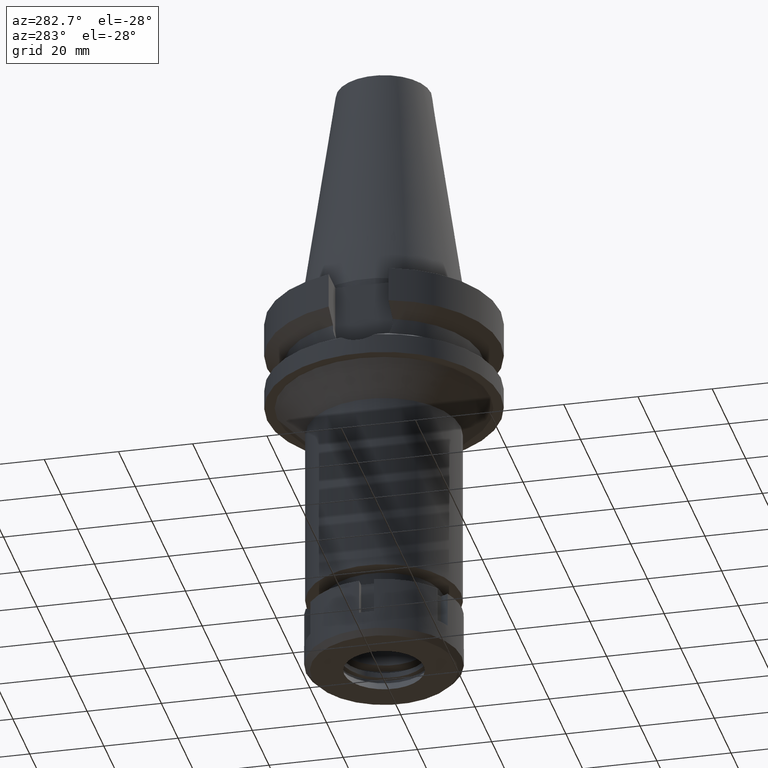
[diagram: clean part render]
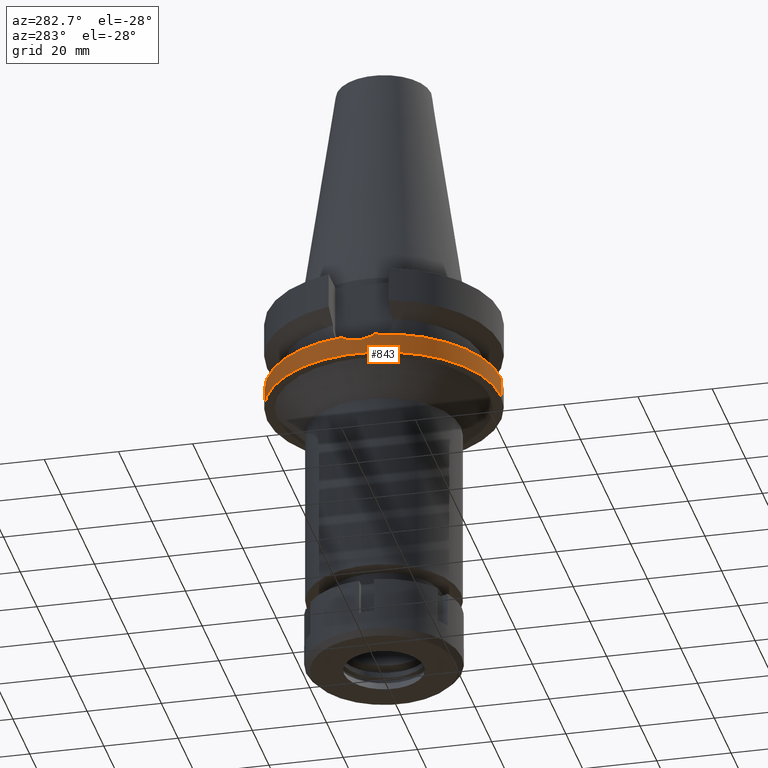
[diagram: same view with one face highlighted and labeled with its STEP entity id]
A machine part, auxiliary view. The second image highlights one B-rep face of the part: STEP entity #843.
In plain terms, the highlighted cylindrical surface (partial cylindrical patch) has radius 31.5 mm, axis along (0, 0, -1).
Its self-contained STEP definition (entity closure, byte-faithful):
#226 = CIRCLE ( 'NONE', #1412, 31.50000000000001421 ) ;
#238 = CARTESIAN_POINT ( 'NONE',  ( -31.46146862952803502, -1.567358629210796606, -22.84847756273253339 ) ) ;
#249 = VERTEX_POINT ( 'NONE', #3398 ) ;
#263 = CARTESIAN_POINT ( 'NONE',  ( -31.47056816806593460, -1.371798205039238550, -22.88470967409992340 ) ) ;
#384 = CIRCLE ( 'NONE', #1141, 31.50000000000000000 ) ;
#390 = CARTESIAN_POINT ( 'NONE',  ( 0.0000000000000000000, 2.125007125879999817E-14, -27.00000000000000000 ) ) ;
#448 = CYLINDRICAL_SURFACE ( 'NONE', #3289, 31.50000000000000000 ) ;
#471 = CARTESIAN_POINT ( 'NONE',  ( -31.28458591552719881, -3.751599172481635769, -22.12699252594910604 ) ) ;
#504 = CARTESIAN_POINT ( 'NONE',  ( 0.0000000000000000000, 31.50000000000000000, -21.63449434733000132 ) ) ;
#506 = CARTESIAN_POINT ( 'NONE',  ( -31.40255557127893837, 2.476306052357307941, -22.60989025223578608 ) ) ;
#517 = B_SPLINE_CURVE_WITH_KNOTS ( 'NONE', 3,
 ( #544, #2438, #1056, #788, #1095, #2200, #1668, #506, #1633, #3023, #2727, #2745, #522, #2764, #1651, #263, #238, #821, #2423, #1375, #1390, #3556, #749, #1870, #471, #2473 ),
 .UNSPECIFIED., .F., .F.,
 ( 4, 2, 2, 1, 1, 2, 2, 2, 2, 2, 1, 1, 2, 2, 4 ),
 ( 0.0000000000000000000, 0.1250000000000029421, 0.1875000000000042466, 0.2187500000000047184, 0.2343750000000052736, 0.2421875000000053568, 0.2500000000000054401, 0.5000000000000052180, 0.6250000000000049960, 0.6875000000000049960, 0.7187500000000047740, 0.7343750000000046629, 0.7421875000000043299, 0.7500000000000041078, 1.000000000000000000 ),
 .UNSPECIFIED. ) ;
#522 = CARTESIAN_POINT ( 'NONE',  ( -31.50032380699094858, 0.7535289836030051314, -23.00127312585620842 ) ) ;
#544 = CARTESIAN_POINT ( 'NONE',  ( -31.17899877608999759, 4.485536235554000051, -21.63449434733000132 ) ) ;
#569 = EDGE_CURVE ( 'NONE', #3610, #249, #226, .T. ) ;
#609 = CARTESIAN_POINT ( 'NONE',  ( 0.0000000000000000000, 0.0000000000000000000, -21.63449434733000132 ) ) ;
#621 = ORIENTED_EDGE ( 'NONE', *, *, #2269, .F. ) ;
#635 = VERTEX_POINT ( 'NONE', #2012 ) ;
#725 = ORIENTED_EDGE ( 'NONE', *, *, #3313, .T. ) ;
#727 = DIRECTION ( 'NONE',  ( 0.0000000000000000000, 0.0000000000000000000, -1.000000000000000000 ) ) ;
#749 = CARTESIAN_POINT ( 'NONE',  ( -31.41408065394637461, -2.325228041235370302, -22.65689912745287415 ) ) ;
#764 = DIRECTION ( 'NONE',  ( 0.0000000000000000000, 0.0000000000000000000, 1.000000000000000000 ) ) ;
#788 = CARTESIAN_POINT ( 'NONE',  ( -31.33719342387509244, 3.200318897670098917, -22.33920407938815700 ) ) ;
#821 = CARTESIAN_POINT ( 'NONE',  ( -31.44511396460612218, -1.860301245820953353, -22.78273863314643322 ) ) ;
#843 = ADVANCED_FACE ( 'NONE', ( #3236 ), #448, .T. ) ;
#1007 = CARTESIAN_POINT ( 'NONE',  ( 0.0000000000000000000, 31.50000000000000000, -27.00000000000000000 ) ) ;
#1018 = DIRECTION ( 'NONE',  ( 0.0000000000000000000, -1.105773104655000034E-13, -1.000000000000000000 ) ) ;
#1035 = DIRECTION ( 'NONE',  ( 0.0000000000000000000, 1.000000000000000000, 0.0000000000000000000 ) ) ;
#1056 = CARTESIAN_POINT ( 'NONE',  ( -31.27846961443055918, 3.743983546182670263, -22.08754853576750676 ) ) ;
#1095 = CARTESIAN_POINT ( 'NONE',  ( -31.35500365821097191, 3.021264144826806497, -22.41390211744569783 ) ) ;
#1141 = AXIS2_PLACEMENT_3D ( 'NONE', #390, #764, #1035 ) ;
#1267 = CARTESIAN_POINT ( 'NONE',  ( 0.0000000000000000000, 2.125007125879999817E-14, 73.51999999999999602 ) ) ;
#1275 = VERTEX_POINT ( 'NONE', #1007 ) ;
#1303 = LINE ( 'NONE', #504, #2705 ) ;
#1330 = ORIENTED_EDGE ( 'NONE', *, *, #569, .T. ) ;
#1375 = CARTESIAN_POINT ( 'NONE',  ( -31.42474741543222549, -2.177058571085332073, -22.70031563427076549 ) ) ;
#1390 = CARTESIAN_POINT ( 'NONE',  ( -31.41955969787373704, -2.249977568502671499, -22.67921356346372974 ) ) ;
#1412 = AXIS2_PLACEMENT_3D ( 'NONE', #2839, #2327, #2069 ) ;
#1436 = DIRECTION ( 'NONE',  ( 0.0000000000000000000, 0.0000000000000000000, -1.000000000000000000 ) ) ;
#1629 = DIRECTION ( 'NONE',  ( 0.0000000000000000000, 1.099151708819000049E-13, -1.000000000000000000 ) ) ;
#1633 = CARTESIAN_POINT ( 'NONE',  ( -31.40749760860526152, 2.412424580014026709, -22.63005222544030204 ) ) ;
#1651 = CARTESIAN_POINT ( 'NONE',  ( -31.49245606944948150, -0.7860991982164250436, -22.97124303091352360 ) ) ;
#1668 = CARTESIAN_POINT ( 'NONE',  ( -31.39044521733431381, 2.626578571214957414, -22.56039104643115678 ) ) ;
#1870 = CARTESIAN_POINT ( 'NONE',  ( -31.36242476482150465, -3.016548684978616723, -22.44626900665361546 ) ) ;
#1919 = EDGE_CURVE ( 'NONE', #3610, #635, #517, .T. ) ;
#1920 = ORIENTED_EDGE ( 'NONE', *, *, #1919, .F. ) ;
#1924 = EDGE_LOOP ( 'NONE', ( #1330, #2986, #3439, #621, #725, #1920 ) ) ;
#1959 = VERTEX_POINT ( 'NONE', #2547 ) ;
#2012 = CARTESIAN_POINT ( 'NONE',  ( -31.17899877608999759, -4.485536235554000051, -21.63449434733000132 ) ) ;
#2069 = DIRECTION ( 'NONE',  ( -0.9898094849552905306, 0.1423979757318985240, 0.0000000000000000000 ) ) ;
#2157 = VECTOR ( 'NONE', #1018, 1000.000000000000000 ) ;
#2200 = CARTESIAN_POINT ( 'NONE',  ( -31.37907245649627797, 2.757363126088964833, -22.51361630133309077 ) ) ;
#2245 = CIRCLE ( 'NONE', #2816, 31.50000000000000000 ) ;
#2269 = EDGE_CURVE ( 'NONE', #1959, #2491, #3260, .T. ) ;
#2327 = DIRECTION ( 'NONE',  ( 0.0000000000000000000, 0.0000000000000000000, -1.000000000000000000 ) ) ;
#2423 = CARTESIAN_POINT ( 'NONE',  ( -31.43626029286638612, -2.006672135019202052, -22.74702249194357861 ) ) ;
#2438 = CARTESIAN_POINT ( 'NONE',  ( -31.23226293288492172, 4.115296649411750884, -21.88293843198445643 ) ) ;
#2473 = CARTESIAN_POINT ( 'NONE',  ( -31.17899877608999759, -4.485536235554000051, -21.63449434733000132 ) ) ;
#2491 = VERTEX_POINT ( 'NONE', #3107 ) ;
#2547 = CARTESIAN_POINT ( 'NONE',  ( 0.0000000000000000000, -31.50000000000000000, -21.63449434733000132 ) ) ;
#2705 = VECTOR ( 'NONE', #1629, 1000.000000000000000 ) ;
#2727 = CARTESIAN_POINT ( 'NONE',  ( -31.41215830074744986, 2.351096289891153823, -22.64905788739255854 ) ) ;
#2745 = CARTESIAN_POINT ( 'NONE',  ( -31.47164681449471502, 1.548077469598718947, -22.89150997832093637 ) ) ;
#2764 = CARTESIAN_POINT ( 'NONE',  ( -31.49983371806498056, -0.3969849275398034671, -22.99934650678999049 ) ) ;
#2816 = AXIS2_PLACEMENT_3D ( 'NONE', #609, #1436, #3377 ) ;
#2839 = CARTESIAN_POINT ( 'NONE',  ( 0.0000000000000000000, 0.0000000000000000000, -21.63449434733000132 ) ) ;
#2986 = ORIENTED_EDGE ( 'NONE', *, *, #3557, .T. ) ;
#3023 = CARTESIAN_POINT ( 'NONE',  ( -31.41073716363075619, 2.369955556981345524, -22.64326362460559494 ) ) ;
#3107 = CARTESIAN_POINT ( 'NONE',  ( 0.0000000000000000000, -31.50000000000000000, -27.00000000000000000 ) ) ;
#3236 = FACE_OUTER_BOUND ( 'NONE', #1924, .T. ) ;
#3260 = LINE ( 'NONE', #3551, #2157 ) ;
#3289 = AXIS2_PLACEMENT_3D ( 'NONE', #1267, #727, #3601 ) ;
#3313 = EDGE_CURVE ( 'NONE', #1959, #635, #2245, .T. ) ;
#3317 = CARTESIAN_POINT ( 'NONE',  ( -31.17899877608999759, 4.485536235554000051, -21.63449434733000132 ) ) ;
#3377 = DIRECTION ( 'NONE',  ( 0.0000000000000000000, -1.000000000000000000, 0.0000000000000000000 ) ) ;
#3398 = CARTESIAN_POINT ( 'NONE',  ( 0.0000000000000000000, 31.50000000000000000, -21.63449434733000132 ) ) ;
#3439 = ORIENTED_EDGE ( 'NONE', *, *, #3507, .T. ) ;
#3507 = EDGE_CURVE ( 'NONE', #1275, #2491, #384, .T. ) ;
#3551 = CARTESIAN_POINT ( 'NONE',  ( 0.0000000000000000000, -31.50000000000000000, -21.63449434733000132 ) ) ;
#3556 = CARTESIAN_POINT ( 'NONE',  ( -31.41604485789486390, -2.298564670185179626, -22.66490387661266936 ) ) ;
#3557 = EDGE_CURVE ( 'NONE', #249, #1275, #1303, .T. ) ;
#3601 = DIRECTION ( 'NONE',  ( 0.0000000000000000000, -1.000000000000000000, 0.0000000000000000000 ) ) ;
#3610 = VERTEX_POINT ( 'NONE', #3317 ) ;